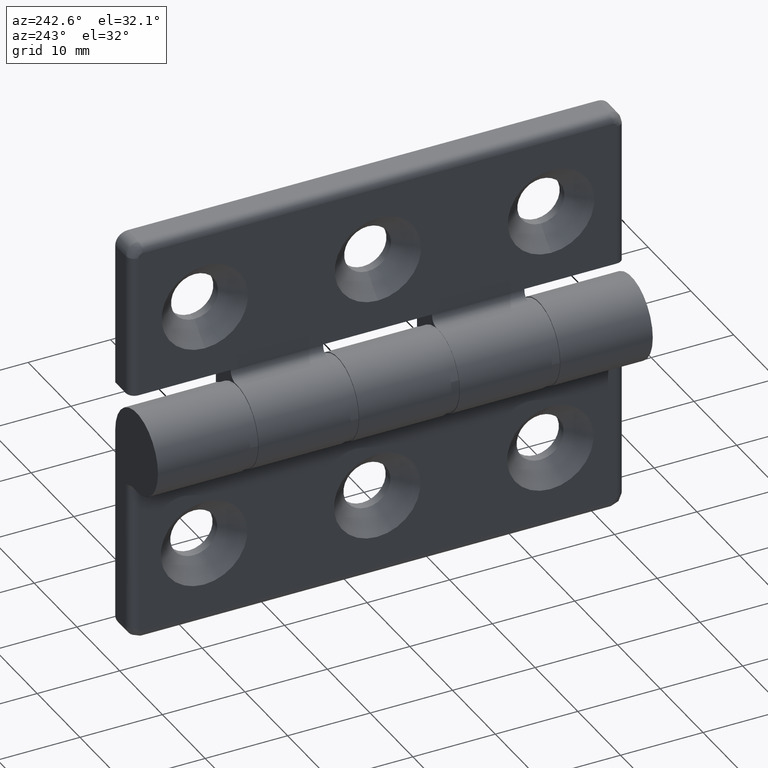
[diagram: clean part render]
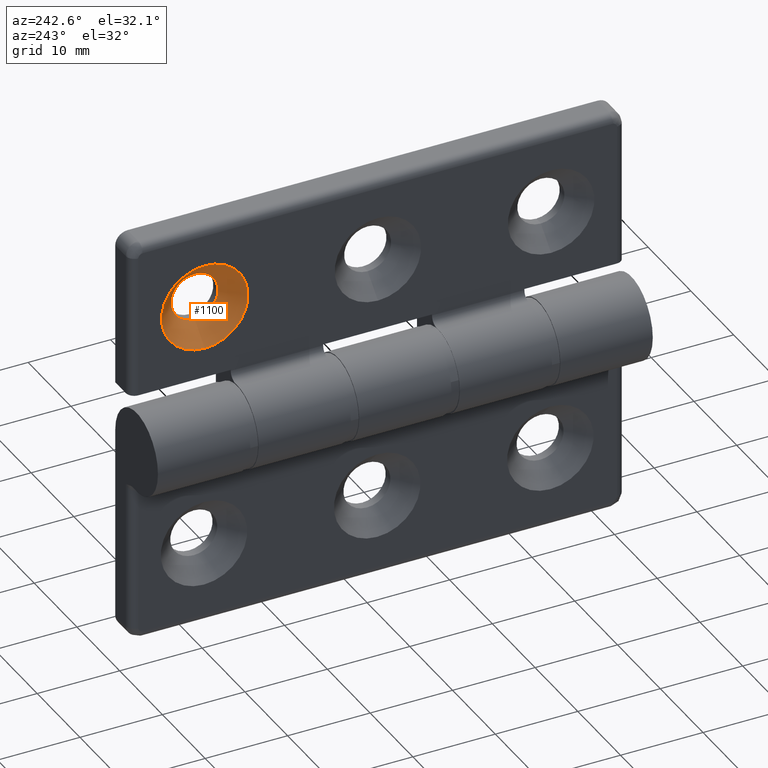
[diagram: same view with one face highlighted and labeled with its STEP entity id]
A machine part, auxiliary view. The second image highlights one B-rep face of the part: STEP entity #1100.
In plain terms, the highlighted conical surface has half-angle 45 deg.
Its self-contained STEP definition (entity closure, byte-faithful):
#52=CONICAL_SURFACE('',#1223,4.05,45.);
#80=FACE_BOUND('',#257,.T.);
#169=FACE_OUTER_BOUND('',#256,.T.);
#256=EDGE_LOOP('',(#978));
#257=EDGE_LOOP('',(#979));
#459=CIRCLE('',#1186,5.25);
#481=CIRCLE('',#1224,2.85);
#553=VERTEX_POINT('',#1908);
#583=VERTEX_POINT('',#2016);
#678=EDGE_CURVE('',#553,#553,#459,.T.);
#722=EDGE_CURVE('',#583,#583,#481,.T.);
#978=ORIENTED_EDGE('',*,*,#678,.F.);
#979=ORIENTED_EDGE('',*,*,#722,.F.);
#1100=ADVANCED_FACE('',(#169,#80),#52,.F.);
#1186=AXIS2_PLACEMENT_3D('',#1909,#1440,#1441);
#1223=AXIS2_PLACEMENT_3D('',#2015,#1536,#1537);
#1224=AXIS2_PLACEMENT_3D('',#2017,#1538,#1539);
#1440=DIRECTION('center_axis',(1.,0.,-5.87376257845724E-16));
#1441=DIRECTION('ref_axis',(5.87376257845724E-16,2.71716102324369E-33,1.));
#1536=DIRECTION('center_axis',(-1.,1.59599587379714E-48,5.87376257845724E-16));
#1537=DIRECTION('ref_axis',(5.87376257845724E-16,2.71716102324369E-33,1.));
#1538=DIRECTION('center_axis',(-1.,1.59599587379714E-48,5.87376257845724E-16));
#1539=DIRECTION('ref_axis',(5.87376257845724E-16,2.71716102324369E-33,1.));
#1908=CARTESIAN_POINT('',(1.49999999999999,9.05,-9.75));
#1909=CARTESIAN_POINT('Origin',(1.49999999999999,9.05,-15.));
#2015=CARTESIAN_POINT('Origin',(2.69999999999999,9.05,-15.));
#2016=CARTESIAN_POINT('',(3.89999999999999,9.05,-12.15));
#2017=CARTESIAN_POINT('Origin',(3.89999999999999,9.05,-15.));